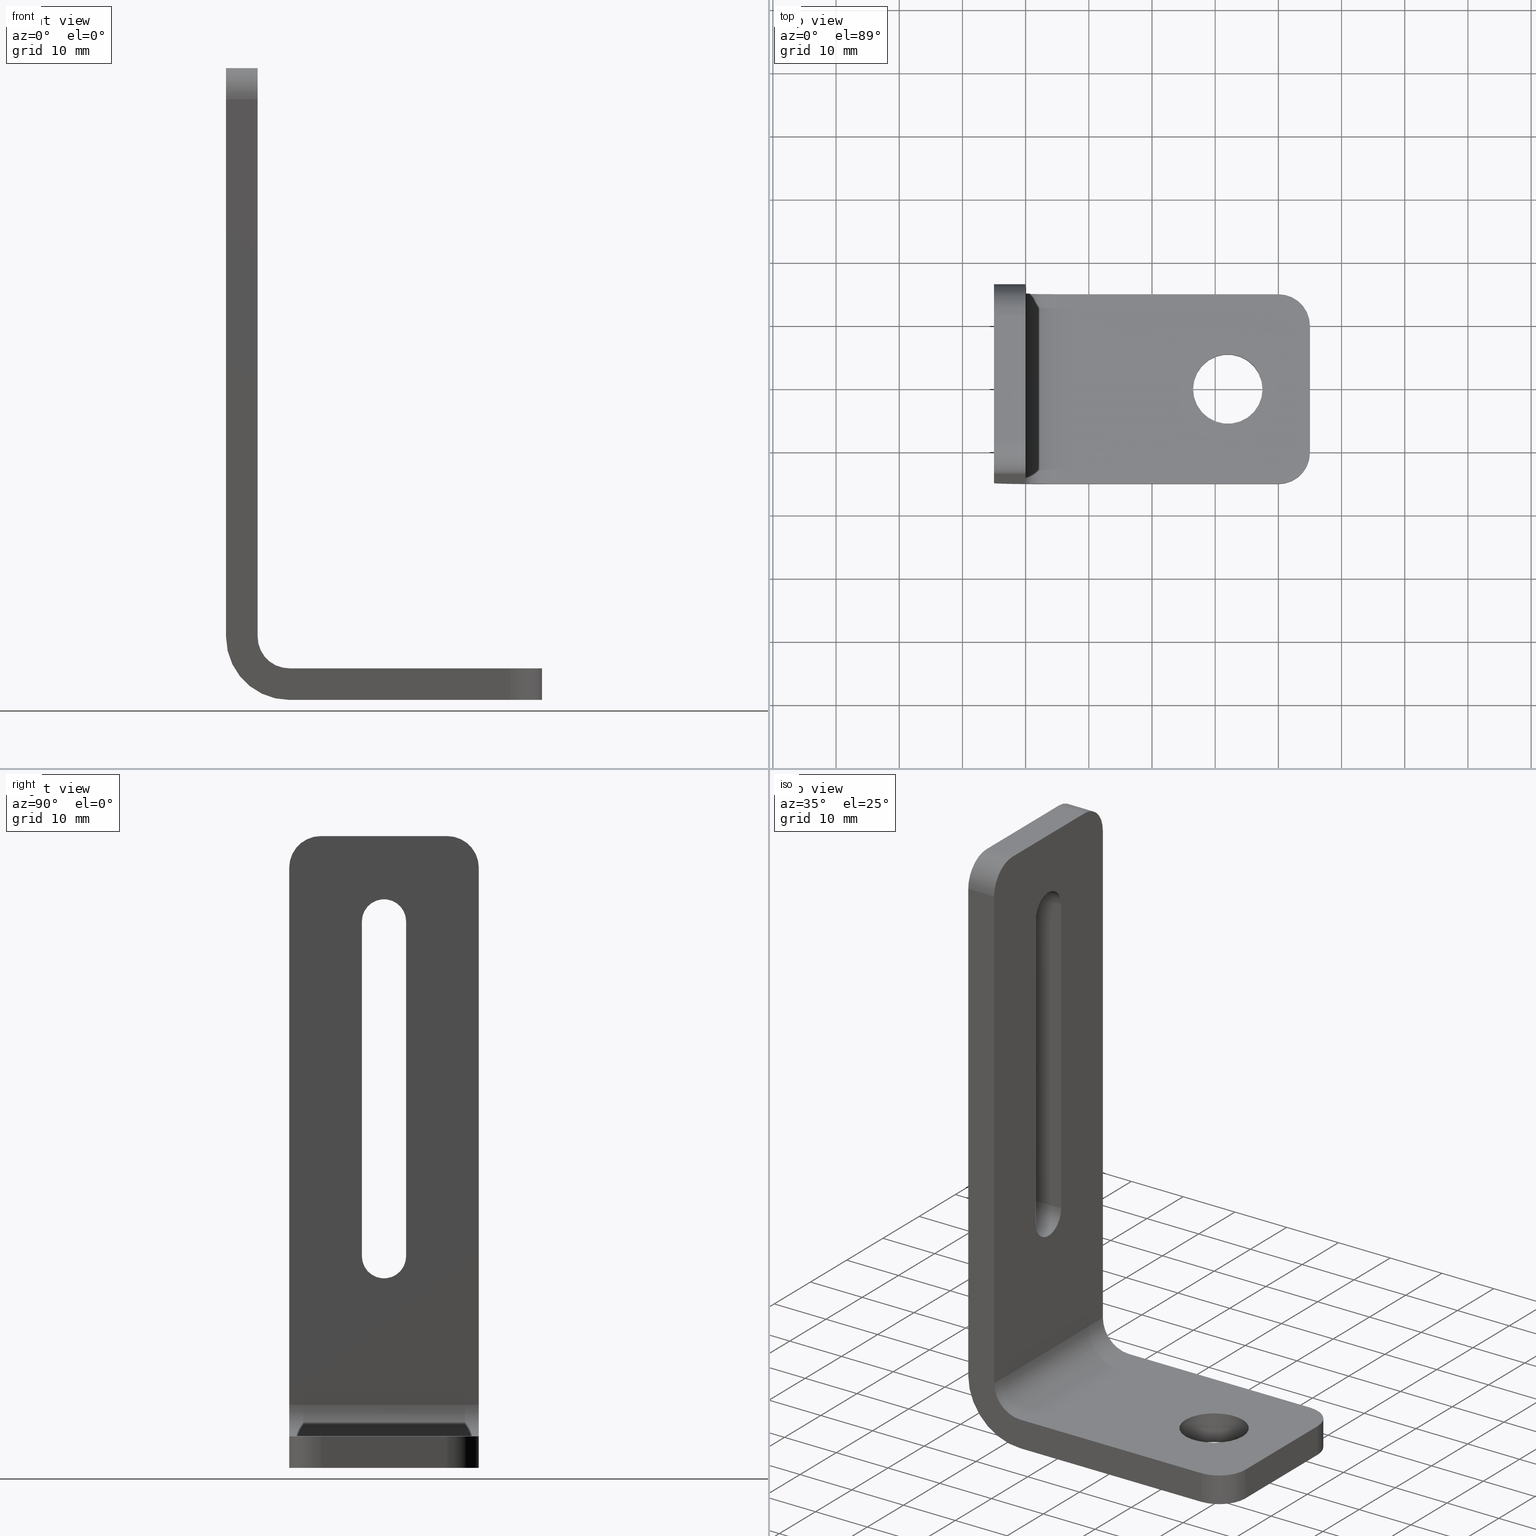
[diagram: canonical four-view strip — front | top / right | iso, engineering-drawing reading convention]
A machine part, canonical four-view strip (front | top / right | iso — engineering-drawing reading convention). The complete STEP part file that produces these views, byte-faithful:
ISO-10303-21;
HEADER;
/* Generated by software containing ST-Developer
 * from STEP Tools, Inc. (www.steptools.com) 
 */

FILE_DESCRIPTION(
/* description */ ('PIEDE 100X50 SP.5 LARG.30 ASOLATO INOX'),
/* implementation_level */ '2;1');

FILE_NAME(
/* name */ 
'Q:\\Catalogo\\2_Accessori Dierre\\Per Download Web e catalogo cartace
o\\CATALOGO PIEDI E SOSTEGNI\\PAGINA 50\\DPDFQ0000069.stp',
/* time_stamp */ '2018-11-06T09:09:17+01:00',
/* author */ ('fzagni'),
/* organization */ (''),
/* preprocessor_version */ 'ST-DEVELOPER v16.1',
/* originating_system */ 'Autodesk Inventor 2016',
/* authorisation */ '');

FILE_SCHEMA (('AUTOMOTIVE_DESIGN { 1 0 10303 214 3 1 1 }'));
ENDSEC;

DATA;
#10=MECHANICAL_DESIGN_GEOMETRIC_PRESENTATION_REPRESENTATION('',(#13),#681);
#11=SHAPE_REPRESENTATION_RELATIONSHIP('SRR','None',#690,#12);
#12=ADVANCED_BREP_SHAPE_REPRESENTATION('',(#14),#680);
#13=STYLED_ITEM('',(#699),#14);
#14=MANIFOLD_SOLID_BREP('Solido1',#403);
#15=FACE_BOUND('',#60,.T.);
#16=FACE_BOUND('',#66,.T.);
#17=FACE_BOUND('',#74,.T.);
#18=FACE_BOUND('',#80,.T.);
#19=FACE_BOUND('',#84,.T.);
#20=PLANE('',#408);
#21=PLANE('',#409);
#22=PLANE('',#414);
#23=PLANE('',#418);
#24=PLANE('',#419);
#25=PLANE('',#425);
#26=PLANE('',#428);
#27=PLANE('',#431);
#28=PLANE('',#437);
#29=PLANE('',#438);
#30=PLANE('',#440);
#31=PLANE('',#442);
#32=PLANE('',#444);
#33=PLANE('',#445);
#34=FACE_OUTER_BOUND('',#57,.T.);
#35=FACE_OUTER_BOUND('',#58,.T.);
#36=FACE_OUTER_BOUND('',#59,.T.);
#37=FACE_OUTER_BOUND('',#61,.T.);
#38=FACE_OUTER_BOUND('',#62,.T.);
#39=FACE_OUTER_BOUND('',#63,.T.);
#40=FACE_OUTER_BOUND('',#64,.T.);
#41=FACE_OUTER_BOUND('',#65,.T.);
#42=FACE_OUTER_BOUND('',#67,.T.);
#43=FACE_OUTER_BOUND('',#68,.T.);
#44=FACE_OUTER_BOUND('',#69,.T.);
#45=FACE_OUTER_BOUND('',#70,.T.);
#46=FACE_OUTER_BOUND('',#71,.T.);
#47=FACE_OUTER_BOUND('',#72,.T.);
#48=FACE_OUTER_BOUND('',#73,.T.);
#49=FACE_OUTER_BOUND('',#75,.T.);
#50=FACE_OUTER_BOUND('',#76,.T.);
#51=FACE_OUTER_BOUND('',#77,.T.);
#52=FACE_OUTER_BOUND('',#78,.T.);
#53=FACE_OUTER_BOUND('',#79,.T.);
#54=FACE_OUTER_BOUND('',#81,.T.);
#55=FACE_OUTER_BOUND('',#82,.T.);
#56=FACE_OUTER_BOUND('',#83,.T.);
#57=EDGE_LOOP('',(#263,#264,#265,#266));
#58=EDGE_LOOP('',(#267,#268,#269,#270));
#59=EDGE_LOOP('',(#271,#272,#273,#274,#275,#276));
#60=EDGE_LOOP('',(#277));
#61=EDGE_LOOP('',(#278,#279,#280,#281));
#62=EDGE_LOOP('',(#282,#283,#284,#285));
#63=EDGE_LOOP('',(#286,#287,#288,#289));
#64=EDGE_LOOP('',(#290,#291,#292,#293));
#65=EDGE_LOOP('',(#294,#295,#296,#297,#298,#299));
#66=EDGE_LOOP('',(#300,#301,#302,#303));
#67=EDGE_LOOP('',(#304,#305,#306,#307));
#68=EDGE_LOOP('',(#308,#309,#310,#311));
#69=EDGE_LOOP('',(#312,#313,#314,#315));
#70=EDGE_LOOP('',(#316,#317,#318,#319));
#71=EDGE_LOOP('',(#320,#321,#322,#323));
#72=EDGE_LOOP('',(#324,#325,#326,#327));
#73=EDGE_LOOP('',(#328));
#74=EDGE_LOOP('',(#329));
#75=EDGE_LOOP('',(#330,#331,#332,#333));
#76=EDGE_LOOP('',(#334,#335,#336,#337));
#77=EDGE_LOOP('',(#338,#339,#340,#341));
#78=EDGE_LOOP('',(#342,#343,#344,#345));
#79=EDGE_LOOP('',(#346,#347,#348,#349,#350,#351));
#80=EDGE_LOOP('',(#352,#353,#354,#355));
#81=EDGE_LOOP('',(#356,#357,#358,#359));
#82=EDGE_LOOP('',(#360,#361,#362,#363));
#83=EDGE_LOOP('',(#364,#365,#366,#367,#368,#369));
#84=EDGE_LOOP('',(#370));
#85=LINE('',#572,#121);
#86=LINE('',#575,#122);
#87=LINE('',#578,#123);
#88=LINE('',#580,#124);
#89=LINE('',#581,#125);
#90=LINE('',#584,#126);
#91=LINE('',#586,#127);
#92=LINE('',#588,#128);
#93=LINE('',#595,#129);
#94=LINE('',#598,#130);
#95=LINE('',#599,#131);
#96=LINE('',#605,#132);
#97=LINE('',#608,#133);
#98=LINE('',#611,#134);
#99=LINE('',#613,#135);
#100=LINE('',#614,#136);
#101=LINE('',#617,#137);
#102=LINE('',#619,#138);
#103=LINE('',#621,#139);
#104=LINE('',#627,#140);
#105=LINE('',#630,#141);
#106=LINE('',#634,#142);
#107=LINE('',#637,#143);
#108=LINE('',#638,#144);
#109=LINE('',#641,#145);
#110=LINE('',#644,#146);
#111=LINE('',#647,#147);
#112=LINE('',#648,#148);
#113=LINE('',#651,#149);
#114=LINE('',#654,#150);
#115=LINE('',#660,#151);
#116=LINE('',#664,#152);
#117=LINE('',#665,#153);
#118=LINE('',#670,#154);
#119=LINE('',#674,#155);
#120=LINE('',#676,#156);
#121=VECTOR('',#452,5.);
#122=VECTOR('',#455,5.);
#123=VECTOR('',#458,20.);
#124=VECTOR('',#459,5.);
#125=VECTOR('',#460,20.);
#126=VECTOR('',#463,35.);
#127=VECTOR('',#464,30.);
#128=VECTOR('',#465,35.);
#129=VECTOR('',#474,5.);
#130=VECTOR('',#477,5.);
#131=VECTOR('',#478,35.);
#132=VECTOR('',#483,5.);
#133=VECTOR('',#486,5.);
#134=VECTOR('',#489,20.);
#135=VECTOR('',#490,5.);
#136=VECTOR('',#491,20.);
#137=VECTOR('',#494,85.);
#138=VECTOR('',#495,30.);
#139=VECTOR('',#496,85.);
#140=VECTOR('',#501,53.);
#141=VECTOR('',#504,53.);
#142=VECTOR('',#509,5.);
#143=VECTOR('',#512,5.);
#144=VECTOR('',#513,85.);
#145=VECTOR('',#516,5.);
#146=VECTOR('',#519,5.);
#147=VECTOR('',#522,5.);
#148=VECTOR('',#523,53.);
#149=VECTOR('',#526,5.);
#150=VECTOR('',#531,53.);
#151=VECTOR('',#538,30.);
#152=VECTOR('',#545,85.);
#153=VECTOR('',#546,5.);
#154=VECTOR('',#553,5.);
#155=VECTOR('',#560,30.);
#156=VECTOR('',#563,35.);
#157=CIRCLE('',#406,5.);
#158=CIRCLE('',#407,5.);
#159=CIRCLE('',#410,5.);
#160=CIRCLE('',#411,5.5);
#161=CIRCLE('',#413,5.);
#162=CIRCLE('',#416,5.);
#163=CIRCLE('',#417,5.);
#164=CIRCLE('',#420,5.);
#165=CIRCLE('',#421,3.5);
#166=CIRCLE('',#422,3.5);
#167=CIRCLE('',#424,5.);
#168=CIRCLE('',#427,3.5);
#169=CIRCLE('',#430,3.5);
#170=CIRCLE('',#433,5.5);
#171=CIRCLE('',#435,10.);
#172=CIRCLE('',#436,10.);
#173=CIRCLE('',#439,5.);
#174=CIRCLE('',#441,5.);
#175=VERTEX_POINT('',#568);
#176=VERTEX_POINT('',#569);
#177=VERTEX_POINT('',#571);
#178=VERTEX_POINT('',#573);
#179=VERTEX_POINT('',#577);
#180=VERTEX_POINT('',#579);
#181=VERTEX_POINT('',#583);
#182=VERTEX_POINT('',#585);
#183=VERTEX_POINT('',#587);
#184=VERTEX_POINT('',#590);
#185=VERTEX_POINT('',#593);
#186=VERTEX_POINT('',#597);
#187=VERTEX_POINT('',#601);
#188=VERTEX_POINT('',#602);
#189=VERTEX_POINT('',#604);
#190=VERTEX_POINT('',#606);
#191=VERTEX_POINT('',#610);
#192=VERTEX_POINT('',#612);
#193=VERTEX_POINT('',#616);
#194=VERTEX_POINT('',#618);
#195=VERTEX_POINT('',#620);
#196=VERTEX_POINT('',#623);
#197=VERTEX_POINT('',#624);
#198=VERTEX_POINT('',#626);
#199=VERTEX_POINT('',#628);
#200=VERTEX_POINT('',#632);
#201=VERTEX_POINT('',#636);
#202=VERTEX_POINT('',#640);
#203=VERTEX_POINT('',#642);
#204=VERTEX_POINT('',#646);
#205=VERTEX_POINT('',#650);
#206=VERTEX_POINT('',#656);
#207=VERTEX_POINT('',#659);
#208=VERTEX_POINT('',#669);
#209=EDGE_CURVE('',#175,#176,#157,.T.);
#210=EDGE_CURVE('',#176,#177,#85,.T.);
#211=EDGE_CURVE('',#177,#178,#158,.T.);
#212=EDGE_CURVE('',#178,#175,#86,.T.);
#213=EDGE_CURVE('',#179,#178,#87,.T.);
#214=EDGE_CURVE('',#180,#179,#88,.T.);
#215=EDGE_CURVE('',#180,#175,#89,.T.);
#216=EDGE_CURVE('',#177,#181,#90,.T.);
#217=EDGE_CURVE('',#181,#182,#91,.T.);
#218=EDGE_CURVE('',#182,#183,#92,.T.);
#219=EDGE_CURVE('',#179,#183,#159,.T.);
#220=EDGE_CURVE('',#184,#184,#160,.T.);
#221=EDGE_CURVE('',#185,#180,#161,.T.);
#222=EDGE_CURVE('',#183,#185,#93,.T.);
#223=EDGE_CURVE('',#182,#186,#94,.T.);
#224=EDGE_CURVE('',#186,#185,#95,.T.);
#225=EDGE_CURVE('',#187,#188,#162,.T.);
#226=EDGE_CURVE('',#188,#189,#96,.T.);
#227=EDGE_CURVE('',#189,#190,#163,.T.);
#228=EDGE_CURVE('',#190,#187,#97,.T.);
#229=EDGE_CURVE('',#191,#190,#98,.T.);
#230=EDGE_CURVE('',#192,#191,#99,.T.);
#231=EDGE_CURVE('',#192,#187,#100,.T.);
#232=EDGE_CURVE('',#189,#193,#101,.T.);
#233=EDGE_CURVE('',#193,#194,#102,.T.);
#234=EDGE_CURVE('',#195,#194,#103,.T.);
#235=EDGE_CURVE('',#191,#195,#164,.T.);
#236=EDGE_CURVE('',#196,#197,#165,.T.);
#237=EDGE_CURVE('',#197,#198,#104,.T.);
#238=EDGE_CURVE('',#198,#199,#166,.T.);
#239=EDGE_CURVE('',#199,#196,#105,.T.);
#240=EDGE_CURVE('',#200,#192,#167,.T.);
#241=EDGE_CURVE('',#195,#200,#106,.T.);
#242=EDGE_CURVE('',#194,#201,#107,.T.);
#243=EDGE_CURVE('',#201,#200,#108,.T.);
#244=EDGE_CURVE('',#196,#202,#109,.T.);
#245=EDGE_CURVE('',#203,#202,#168,.T.);
#246=EDGE_CURVE('',#197,#203,#110,.T.);
#247=EDGE_CURVE('',#199,#204,#111,.T.);
#248=EDGE_CURVE('',#202,#204,#112,.T.);
#249=EDGE_CURVE('',#198,#205,#113,.T.);
#250=EDGE_CURVE('',#204,#205,#169,.T.);
#251=EDGE_CURVE('',#205,#203,#114,.T.);
#252=EDGE_CURVE('',#206,#206,#170,.T.);
#253=EDGE_CURVE('',#201,#207,#115,.T.);
#254=EDGE_CURVE('',#182,#201,#171,.T.);
#255=EDGE_CURVE('',#207,#181,#172,.T.);
#256=EDGE_CURVE('',#188,#207,#116,.T.);
#257=EDGE_CURVE('',#207,#193,#117,.T.);
#258=EDGE_CURVE('',#194,#186,#173,.T.);
#259=EDGE_CURVE('',#208,#181,#118,.T.);
#260=EDGE_CURVE('',#193,#208,#174,.T.);
#261=EDGE_CURVE('',#186,#208,#119,.T.);
#262=EDGE_CURVE('',#176,#208,#120,.T.);
#263=ORIENTED_EDGE('',*,*,#209,.T.);
#264=ORIENTED_EDGE('',*,*,#210,.T.);
#265=ORIENTED_EDGE('',*,*,#211,.T.);
#266=ORIENTED_EDGE('',*,*,#212,.T.);
#267=ORIENTED_EDGE('',*,*,#212,.F.);
#268=ORIENTED_EDGE('',*,*,#213,.F.);
#269=ORIENTED_EDGE('',*,*,#214,.F.);
#270=ORIENTED_EDGE('',*,*,#215,.T.);
#271=ORIENTED_EDGE('',*,*,#211,.F.);
#272=ORIENTED_EDGE('',*,*,#216,.T.);
#273=ORIENTED_EDGE('',*,*,#217,.T.);
#274=ORIENTED_EDGE('',*,*,#218,.T.);
#275=ORIENTED_EDGE('',*,*,#219,.F.);
#276=ORIENTED_EDGE('',*,*,#213,.T.);
#277=ORIENTED_EDGE('',*,*,#220,.T.);
#278=ORIENTED_EDGE('',*,*,#221,.T.);
#279=ORIENTED_EDGE('',*,*,#214,.T.);
#280=ORIENTED_EDGE('',*,*,#219,.T.);
#281=ORIENTED_EDGE('',*,*,#222,.T.);
#282=ORIENTED_EDGE('',*,*,#222,.F.);
#283=ORIENTED_EDGE('',*,*,#218,.F.);
#284=ORIENTED_EDGE('',*,*,#223,.T.);
#285=ORIENTED_EDGE('',*,*,#224,.T.);
#286=ORIENTED_EDGE('',*,*,#225,.T.);
#287=ORIENTED_EDGE('',*,*,#226,.T.);
#288=ORIENTED_EDGE('',*,*,#227,.T.);
#289=ORIENTED_EDGE('',*,*,#228,.T.);
#290=ORIENTED_EDGE('',*,*,#228,.F.);
#291=ORIENTED_EDGE('',*,*,#229,.F.);
#292=ORIENTED_EDGE('',*,*,#230,.F.);
#293=ORIENTED_EDGE('',*,*,#231,.T.);
#294=ORIENTED_EDGE('',*,*,#227,.F.);
#295=ORIENTED_EDGE('',*,*,#232,.T.);
#296=ORIENTED_EDGE('',*,*,#233,.T.);
#297=ORIENTED_EDGE('',*,*,#234,.F.);
#298=ORIENTED_EDGE('',*,*,#235,.F.);
#299=ORIENTED_EDGE('',*,*,#229,.T.);
#300=ORIENTED_EDGE('',*,*,#236,.T.);
#301=ORIENTED_EDGE('',*,*,#237,.T.);
#302=ORIENTED_EDGE('',*,*,#238,.T.);
#303=ORIENTED_EDGE('',*,*,#239,.T.);
#304=ORIENTED_EDGE('',*,*,#240,.T.);
#305=ORIENTED_EDGE('',*,*,#230,.T.);
#306=ORIENTED_EDGE('',*,*,#235,.T.);
#307=ORIENTED_EDGE('',*,*,#241,.T.);
#308=ORIENTED_EDGE('',*,*,#241,.F.);
#309=ORIENTED_EDGE('',*,*,#234,.T.);
#310=ORIENTED_EDGE('',*,*,#242,.T.);
#311=ORIENTED_EDGE('',*,*,#243,.T.);
#312=ORIENTED_EDGE('',*,*,#236,.F.);
#313=ORIENTED_EDGE('',*,*,#244,.T.);
#314=ORIENTED_EDGE('',*,*,#245,.F.);
#315=ORIENTED_EDGE('',*,*,#246,.F.);
#316=ORIENTED_EDGE('',*,*,#239,.F.);
#317=ORIENTED_EDGE('',*,*,#247,.T.);
#318=ORIENTED_EDGE('',*,*,#248,.F.);
#319=ORIENTED_EDGE('',*,*,#244,.F.);
#320=ORIENTED_EDGE('',*,*,#238,.F.);
#321=ORIENTED_EDGE('',*,*,#249,.T.);
#322=ORIENTED_EDGE('',*,*,#250,.F.);
#323=ORIENTED_EDGE('',*,*,#247,.F.);
#324=ORIENTED_EDGE('',*,*,#237,.F.);
#325=ORIENTED_EDGE('',*,*,#246,.T.);
#326=ORIENTED_EDGE('',*,*,#251,.F.);
#327=ORIENTED_EDGE('',*,*,#249,.F.);
#328=ORIENTED_EDGE('',*,*,#220,.F.);
#329=ORIENTED_EDGE('',*,*,#252,.F.);
#330=ORIENTED_EDGE('',*,*,#253,.F.);
#331=ORIENTED_EDGE('',*,*,#254,.F.);
#332=ORIENTED_EDGE('',*,*,#217,.F.);
#333=ORIENTED_EDGE('',*,*,#255,.F.);
#334=ORIENTED_EDGE('',*,*,#226,.F.);
#335=ORIENTED_EDGE('',*,*,#256,.T.);
#336=ORIENTED_EDGE('',*,*,#257,.T.);
#337=ORIENTED_EDGE('',*,*,#232,.F.);
#338=ORIENTED_EDGE('',*,*,#242,.F.);
#339=ORIENTED_EDGE('',*,*,#258,.T.);
#340=ORIENTED_EDGE('',*,*,#223,.F.);
#341=ORIENTED_EDGE('',*,*,#254,.T.);
#342=ORIENTED_EDGE('',*,*,#257,.F.);
#343=ORIENTED_EDGE('',*,*,#255,.T.);
#344=ORIENTED_EDGE('',*,*,#259,.F.);
#345=ORIENTED_EDGE('',*,*,#260,.F.);
#346=ORIENTED_EDGE('',*,*,#225,.F.);
#347=ORIENTED_EDGE('',*,*,#231,.F.);
#348=ORIENTED_EDGE('',*,*,#240,.F.);
#349=ORIENTED_EDGE('',*,*,#243,.F.);
#350=ORIENTED_EDGE('',*,*,#253,.T.);
#351=ORIENTED_EDGE('',*,*,#256,.F.);
#352=ORIENTED_EDGE('',*,*,#245,.T.);
#353=ORIENTED_EDGE('',*,*,#248,.T.);
#354=ORIENTED_EDGE('',*,*,#250,.T.);
#355=ORIENTED_EDGE('',*,*,#251,.T.);
#356=ORIENTED_EDGE('',*,*,#233,.F.);
#357=ORIENTED_EDGE('',*,*,#260,.T.);
#358=ORIENTED_EDGE('',*,*,#261,.F.);
#359=ORIENTED_EDGE('',*,*,#258,.F.);
#360=ORIENTED_EDGE('',*,*,#210,.F.);
#361=ORIENTED_EDGE('',*,*,#262,.T.);
#362=ORIENTED_EDGE('',*,*,#259,.T.);
#363=ORIENTED_EDGE('',*,*,#216,.F.);
#364=ORIENTED_EDGE('',*,*,#209,.F.);
#365=ORIENTED_EDGE('',*,*,#215,.F.);
#366=ORIENTED_EDGE('',*,*,#221,.F.);
#367=ORIENTED_EDGE('',*,*,#224,.F.);
#368=ORIENTED_EDGE('',*,*,#261,.T.);
#369=ORIENTED_EDGE('',*,*,#262,.F.);
#370=ORIENTED_EDGE('',*,*,#252,.T.);
#371=CYLINDRICAL_SURFACE('',#405,5.);
#372=CYLINDRICAL_SURFACE('',#412,5.);
#373=CYLINDRICAL_SURFACE('',#415,5.);
#374=CYLINDRICAL_SURFACE('',#423,5.);
#375=CYLINDRICAL_SURFACE('',#426,3.5);
#376=CYLINDRICAL_SURFACE('',#429,3.5);
#377=CYLINDRICAL_SURFACE('',#432,5.5);
#378=CYLINDRICAL_SURFACE('',#434,10.);
#379=CYLINDRICAL_SURFACE('',#443,5.);
#380=ADVANCED_FACE('',(#34),#371,.T.);
#381=ADVANCED_FACE('',(#35),#20,.T.);
#382=ADVANCED_FACE('',(#36,#15),#21,.F.);
#383=ADVANCED_FACE('',(#37),#372,.T.);
#384=ADVANCED_FACE('',(#38),#22,.T.);
#385=ADVANCED_FACE('',(#39),#373,.T.);
#386=ADVANCED_FACE('',(#40),#23,.T.);
#387=ADVANCED_FACE('',(#41,#16),#24,.T.);
#388=ADVANCED_FACE('',(#42),#374,.T.);
#389=ADVANCED_FACE('',(#43),#25,.T.);
#390=ADVANCED_FACE('',(#44),#375,.F.);
#391=ADVANCED_FACE('',(#45),#26,.F.);
#392=ADVANCED_FACE('',(#46),#376,.F.);
#393=ADVANCED_FACE('',(#47),#27,.F.);
#394=ADVANCED_FACE('',(#48,#17),#377,.F.);
#395=ADVANCED_FACE('',(#49),#378,.T.);
#396=ADVANCED_FACE('',(#50),#28,.T.);
#397=ADVANCED_FACE('',(#51),#29,.T.);
#398=ADVANCED_FACE('',(#52),#30,.T.);
#399=ADVANCED_FACE('',(#53,#18),#31,.F.);
#400=ADVANCED_FACE('',(#54),#379,.F.);
#401=ADVANCED_FACE('',(#55),#32,.T.);
#402=ADVANCED_FACE('',(#56,#19),#33,.T.);
#403=CLOSED_SHELL('',(#380,#381,#382,#383,#384,#385,#386,#387,#388,#389,
#390,#391,#392,#393,#394,#395,#396,#397,#398,#399,#400,#401,#402));
#404=AXIS2_PLACEMENT_3D('placement',#566,#446,#447);
#405=AXIS2_PLACEMENT_3D('',#567,#448,#449);
#406=AXIS2_PLACEMENT_3D('',#570,#450,#451);
#407=AXIS2_PLACEMENT_3D('',#574,#453,#454);
#408=AXIS2_PLACEMENT_3D('',#576,#456,#457);
#409=AXIS2_PLACEMENT_3D('',#582,#461,#462);
#410=AXIS2_PLACEMENT_3D('',#589,#466,#467);
#411=AXIS2_PLACEMENT_3D('',#591,#468,#469);
#412=AXIS2_PLACEMENT_3D('',#592,#470,#471);
#413=AXIS2_PLACEMENT_3D('',#594,#472,#473);
#414=AXIS2_PLACEMENT_3D('',#596,#475,#476);
#415=AXIS2_PLACEMENT_3D('',#600,#479,#480);
#416=AXIS2_PLACEMENT_3D('',#603,#481,#482);
#417=AXIS2_PLACEMENT_3D('',#607,#484,#485);
#418=AXIS2_PLACEMENT_3D('',#609,#487,#488);
#419=AXIS2_PLACEMENT_3D('',#615,#492,#493);
#420=AXIS2_PLACEMENT_3D('',#622,#497,#498);
#421=AXIS2_PLACEMENT_3D('',#625,#499,#500);
#422=AXIS2_PLACEMENT_3D('',#629,#502,#503);
#423=AXIS2_PLACEMENT_3D('',#631,#505,#506);
#424=AXIS2_PLACEMENT_3D('',#633,#507,#508);
#425=AXIS2_PLACEMENT_3D('',#635,#510,#511);
#426=AXIS2_PLACEMENT_3D('',#639,#514,#515);
#427=AXIS2_PLACEMENT_3D('',#643,#517,#518);
#428=AXIS2_PLACEMENT_3D('',#645,#520,#521);
#429=AXIS2_PLACEMENT_3D('',#649,#524,#525);
#430=AXIS2_PLACEMENT_3D('',#652,#527,#528);
#431=AXIS2_PLACEMENT_3D('',#653,#529,#530);
#432=AXIS2_PLACEMENT_3D('',#655,#532,#533);
#433=AXIS2_PLACEMENT_3D('',#657,#534,#535);
#434=AXIS2_PLACEMENT_3D('',#658,#536,#537);
#435=AXIS2_PLACEMENT_3D('',#661,#539,#540);
#436=AXIS2_PLACEMENT_3D('',#662,#541,#542);
#437=AXIS2_PLACEMENT_3D('',#663,#543,#544);
#438=AXIS2_PLACEMENT_3D('',#666,#547,#548);
#439=AXIS2_PLACEMENT_3D('',#667,#549,#550);
#440=AXIS2_PLACEMENT_3D('',#668,#551,#552);
#441=AXIS2_PLACEMENT_3D('',#671,#554,#555);
#442=AXIS2_PLACEMENT_3D('',#672,#556,#557);
#443=AXIS2_PLACEMENT_3D('',#673,#558,#559);
#444=AXIS2_PLACEMENT_3D('',#675,#561,#562);
#445=AXIS2_PLACEMENT_3D('',#677,#564,#565);
#446=DIRECTION('axis',(0.,0.,1.));
#447=DIRECTION('refdir',(1.,0.,0.));
#448=DIRECTION('center_axis',(0.,0.,1.));
#449=DIRECTION('ref_axis',(0.707106781186547,-0.707106781186547,0.));
#450=DIRECTION('center_axis',(0.,0.,-1.));
#451=DIRECTION('ref_axis',(0.707106781186547,-0.707106781186547,0.));
#452=DIRECTION('',(0.,0.,-1.));
#453=DIRECTION('center_axis',(0.,0.,1.));
#454=DIRECTION('ref_axis',(0.707106781186547,-0.707106781186547,0.));
#455=DIRECTION('',(0.,0.,1.));
#456=DIRECTION('center_axis',(1.,0.,0.));
#457=DIRECTION('ref_axis',(0.,0.,-1.));
#458=DIRECTION('',(0.,-1.,0.));
#459=DIRECTION('',(0.,0.,-1.));
#460=DIRECTION('',(0.,-1.,0.));
#461=DIRECTION('center_axis',(0.,0.,1.));
#462=DIRECTION('ref_axis',(1.,0.,0.));
#463=DIRECTION('',(-1.,0.,0.));
#464=DIRECTION('',(0.,1.,0.));
#465=DIRECTION('',(1.,0.,0.));
#466=DIRECTION('center_axis',(0.,0.,1.));
#467=DIRECTION('ref_axis',(0.707106781186547,0.707106781186547,0.));
#468=DIRECTION('center_axis',(0.,0.,1.));
#469=DIRECTION('ref_axis',(1.,0.,0.));
#470=DIRECTION('center_axis',(0.,0.,1.));
#471=DIRECTION('ref_axis',(0.707106781186547,0.707106781186547,0.));
#472=DIRECTION('center_axis',(0.,0.,-1.));
#473=DIRECTION('ref_axis',(0.707106781186547,0.707106781186547,0.));
#474=DIRECTION('',(0.,0.,1.));
#475=DIRECTION('center_axis',(0.,1.,0.));
#476=DIRECTION('ref_axis',(0.,0.,1.));
#477=DIRECTION('',(0.,0.,1.));
#478=DIRECTION('',(1.,0.,0.));
#479=DIRECTION('center_axis',(-1.,0.,-6.12323399573677E-17));
#480=DIRECTION('ref_axis',(0.,-0.707106781186547,0.707106781186547));
#481=DIRECTION('center_axis',(1.,7.90757140046408E-19,6.10148443209598E-17));
#482=DIRECTION('ref_axis',(0.,-0.707106781186547,0.707106781186547));
#483=DIRECTION('',(1.,0.,6.12323399573677E-17));
#484=DIRECTION('center_axis',(-1.,7.90757140046408E-19,-6.10148443209598E-17));
#485=DIRECTION('ref_axis',(0.,-0.707106781186547,0.707106781186547));
#486=DIRECTION('',(-1.,0.,-6.12323399573677E-17));
#487=DIRECTION('center_axis',(-6.12323399573677E-17,0.,1.));
#488=DIRECTION('ref_axis',(1.,0.,0.));
#489=DIRECTION('',(0.,-1.,0.));
#490=DIRECTION('',(1.,0.,6.12323399573677E-17));
#491=DIRECTION('',(0.,-1.,0.));
#492=DIRECTION('center_axis',(1.,-7.90757140046408E-19,6.10148443209598E-17));
#493=DIRECTION('ref_axis',(0.,0.,-1.));
#494=DIRECTION('',(0.,0.,-1.));
#495=DIRECTION('',(7.90757140046408E-19,1.,4.84199100230374E-35));
#496=DIRECTION('',(0.,0.,-1.));
#497=DIRECTION('center_axis',(-1.,7.90757140046408E-19,-6.10148443209598E-17));
#498=DIRECTION('ref_axis',(0.,0.707106781186547,0.707106781186547));
#499=DIRECTION('center_axis',(-1.,7.90757140046408E-19,-6.10148443209598E-17));
#500=DIRECTION('ref_axis',(0.,-1.,-4.82479237956189E-35));
#501=DIRECTION('',(-6.10148443209598E-17,-8.3790416952842E-17,1.));
#502=DIRECTION('center_axis',(-1.,7.90757140046408E-19,-6.10148443209598E-17));
#503=DIRECTION('ref_axis',(0.,1.,4.82479237956189E-35));
#504=DIRECTION('',(6.10148443209598E-17,0.,-1.));
#505=DIRECTION('center_axis',(-1.,0.,-6.12323399573677E-17));
#506=DIRECTION('ref_axis',(0.,0.707106781186547,0.707106781186547));
#507=DIRECTION('center_axis',(1.,7.90757140046408E-19,6.10148443209598E-17));
#508=DIRECTION('ref_axis',(0.,0.707106781186547,0.707106781186547));
#509=DIRECTION('',(-1.,0.,-6.12323399573677E-17));
#510=DIRECTION('center_axis',(0.,1.,0.));
#511=DIRECTION('ref_axis',(1.,0.,0.));
#512=DIRECTION('',(-1.,0.,-6.12323399573677E-17));
#513=DIRECTION('',(-6.12323399573677E-17,0.,1.));
#514=DIRECTION('center_axis',(-1.,0.,0.));
#515=DIRECTION('ref_axis',(0.,-1.,-4.82479237956189E-35));
#516=DIRECTION('',(-1.,0.,0.));
#517=DIRECTION('center_axis',(1.,7.90757140046408E-19,6.10148443209598E-17));
#518=DIRECTION('ref_axis',(0.,-1.,-4.82479237956189E-35));
#519=DIRECTION('',(-1.,0.,0.));
#520=DIRECTION('center_axis',(0.,1.,0.));
#521=DIRECTION('ref_axis',(0.,0.,-1.));
#522=DIRECTION('',(-1.,0.,0.));
#523=DIRECTION('',(-6.10148443209598E-17,0.,1.));
#524=DIRECTION('center_axis',(-1.,0.,0.));
#525=DIRECTION('ref_axis',(0.,1.,4.82479237956189E-35));
#526=DIRECTION('',(-1.,0.,0.));
#527=DIRECTION('center_axis',(1.,7.90757140046408E-19,6.10148443209598E-17));
#528=DIRECTION('ref_axis',(0.,1.,4.82479237956189E-35));
#529=DIRECTION('center_axis',(0.,-1.,-8.3790416952842E-17));
#530=DIRECTION('ref_axis',(0.,-8.88178419700125E-17,1.));
#531=DIRECTION('',(6.10148443209598E-17,8.3790416952842E-17,-1.));
#532=DIRECTION('center_axis',(0.,0.,1.));
#533=DIRECTION('ref_axis',(1.,0.,0.));
#534=DIRECTION('center_axis',(0.,0.,-1.));
#535=DIRECTION('ref_axis',(1.,0.,0.));
#536=DIRECTION('center_axis',(0.,1.,0.));
#537=DIRECTION('ref_axis',(0.,0.,-1.));
#538=DIRECTION('',(7.90757140046408E-19,-1.,4.84199100230374E-35));
#539=DIRECTION('center_axis',(0.,1.,0.));
#540=DIRECTION('ref_axis',(0.,0.,-1.));
#541=DIRECTION('center_axis',(0.,-1.,0.));
#542=DIRECTION('ref_axis',(-1.,0.,-1.11022302462516E-16));
#543=DIRECTION('center_axis',(0.,-1.,0.));
#544=DIRECTION('ref_axis',(-1.,0.,0.));
#545=DIRECTION('',(0.,0.,-1.));
#546=DIRECTION('',(1.,0.,6.12323399573677E-17));
#547=DIRECTION('center_axis',(0.,1.,0.));
#548=DIRECTION('ref_axis',(0.,0.,1.));
#549=DIRECTION('center_axis',(0.,-1.,0.));
#550=DIRECTION('ref_axis',(-1.,0.,0.));
#551=DIRECTION('center_axis',(0.,-1.,0.));
#552=DIRECTION('ref_axis',(0.,0.,-1.));
#553=DIRECTION('',(0.,0.,-1.));
#554=DIRECTION('center_axis',(0.,-1.,0.));
#555=DIRECTION('ref_axis',(-1.,0.,0.));
#556=DIRECTION('center_axis',(1.,7.90757140046408E-19,6.10148443209598E-17));
#557=DIRECTION('ref_axis',(0.,0.,-1.));
#558=DIRECTION('center_axis',(0.,1.,0.));
#559=DIRECTION('ref_axis',(0.,0.,-1.));
#560=DIRECTION('',(0.,-1.,0.));
#561=DIRECTION('center_axis',(0.,-1.,0.));
#562=DIRECTION('ref_axis',(0.,0.,-1.));
#563=DIRECTION('',(-1.,0.,0.));
#564=DIRECTION('center_axis',(0.,0.,1.));
#565=DIRECTION('ref_axis',(1.,0.,0.));
#566=CARTESIAN_POINT('',(0.,0.,0.));
#567=CARTESIAN_POINT('Origin',(20.,-10.,0.));
#568=CARTESIAN_POINT('',(25.,-10.,5.));
#569=CARTESIAN_POINT('',(20.,-15.,5.));
#570=CARTESIAN_POINT('Origin',(20.,-10.,5.));
#571=CARTESIAN_POINT('',(20.,-15.,0.));
#572=CARTESIAN_POINT('',(20.,-15.,0.));
#573=CARTESIAN_POINT('',(25.,-10.,0.));
#574=CARTESIAN_POINT('Origin',(20.,-10.,0.));
#575=CARTESIAN_POINT('',(25.,-10.,0.));
#576=CARTESIAN_POINT('Origin',(25.,15.,0.));
#577=CARTESIAN_POINT('',(25.,10.,0.));
#578=CARTESIAN_POINT('',(25.,15.,0.));
#579=CARTESIAN_POINT('',(25.,10.,5.));
#580=CARTESIAN_POINT('',(25.,10.,0.));
#581=CARTESIAN_POINT('',(25.,15.,5.));
#582=CARTESIAN_POINT('Origin',(0.,7.56970244062607E-17,0.));
#583=CARTESIAN_POINT('',(-15.,-15.,0.));
#584=CARTESIAN_POINT('',(25.,-15.,0.));
#585=CARTESIAN_POINT('',(-15.,15.,0.));
#586=CARTESIAN_POINT('',(-15.,-7.5,0.));
#587=CARTESIAN_POINT('',(20.,15.,0.));
#588=CARTESIAN_POINT('',(-25.,15.,0.));
#589=CARTESIAN_POINT('Origin',(20.,10.,0.));
#590=CARTESIAN_POINT('',(6.5,-6.73555739531044E-16,0.));
#591=CARTESIAN_POINT('Origin',(12.,0.,0.));
#592=CARTESIAN_POINT('Origin',(20.,10.,0.));
#593=CARTESIAN_POINT('',(20.,15.,5.));
#594=CARTESIAN_POINT('Origin',(20.,10.,5.));
#595=CARTESIAN_POINT('',(20.,15.,0.));
#596=CARTESIAN_POINT('Origin',(-25.,15.,0.));
#597=CARTESIAN_POINT('',(-15.,15.,5.));
#598=CARTESIAN_POINT('',(-15.,15.,2.5));
#599=CARTESIAN_POINT('',(-25.,15.,5.));
#600=CARTESIAN_POINT('Origin',(-20.,-10.,95.));
#601=CARTESIAN_POINT('',(-25.,-10.,100.));
#602=CARTESIAN_POINT('',(-25.,-15.,95.));
#603=CARTESIAN_POINT('Origin',(-25.,-10.,95.));
#604=CARTESIAN_POINT('',(-20.,-15.,95.));
#605=CARTESIAN_POINT('',(-20.,-15.,95.));
#606=CARTESIAN_POINT('',(-20.,-10.,100.));
#607=CARTESIAN_POINT('Origin',(-20.,-10.,95.));
#608=CARTESIAN_POINT('',(-20.,-10.,100.));
#609=CARTESIAN_POINT('Origin',(-20.,15.,100.));
#610=CARTESIAN_POINT('',(-20.,10.,100.));
#611=CARTESIAN_POINT('',(-20.,15.,100.));
#612=CARTESIAN_POINT('',(-25.,10.,100.));
#613=CARTESIAN_POINT('',(-20.,10.,100.));
#614=CARTESIAN_POINT('',(-25.,15.,100.));
#615=CARTESIAN_POINT('Origin',(-20.,0.,48.75));
#616=CARTESIAN_POINT('',(-20.,-15.,10.));
#617=CARTESIAN_POINT('',(-20.,-15.,-15.));
#618=CARTESIAN_POINT('',(-20.,15.,10.));
#619=CARTESIAN_POINT('',(-20.,-1.16942984047388E-18,10.));
#620=CARTESIAN_POINT('',(-20.,15.,95.));
#621=CARTESIAN_POINT('',(-20.,15.,-15.));
#622=CARTESIAN_POINT('Origin',(-20.,10.,95.));
#623=CARTESIAN_POINT('',(-20.,3.5,33.5));
#624=CARTESIAN_POINT('',(-20.,-3.5,33.5));
#625=CARTESIAN_POINT('Origin',(-20.,0.,33.5));
#626=CARTESIAN_POINT('',(-20.,-3.5,86.5));
#627=CARTESIAN_POINT('',(-20.,-3.5,41.125));
#628=CARTESIAN_POINT('',(-20.,3.5,86.5));
#629=CARTESIAN_POINT('Origin',(-20.,0.,86.5));
#630=CARTESIAN_POINT('',(-20.,3.5,67.625));
#631=CARTESIAN_POINT('Origin',(-20.,10.,95.));
#632=CARTESIAN_POINT('',(-25.,15.,95.));
#633=CARTESIAN_POINT('Origin',(-25.,10.,95.));
#634=CARTESIAN_POINT('',(-20.,15.,95.));
#635=CARTESIAN_POINT('Origin',(-20.,15.,10.));
#636=CARTESIAN_POINT('',(-25.,15.,10.));
#637=CARTESIAN_POINT('',(-21.4788735772974,15.,10.));
#638=CARTESIAN_POINT('',(-25.,15.,10.));
#639=CARTESIAN_POINT('Origin',(-20.,0.,33.5));
#640=CARTESIAN_POINT('',(-25.,3.5,33.5));
#641=CARTESIAN_POINT('',(-20.,3.5,33.5));
#642=CARTESIAN_POINT('',(-25.,-3.5,33.5));
#643=CARTESIAN_POINT('Origin',(-25.,0.,33.5));
#644=CARTESIAN_POINT('',(-20.,-3.5,33.5));
#645=CARTESIAN_POINT('Origin',(-20.,3.5,86.5));
#646=CARTESIAN_POINT('',(-25.,3.5,86.5));
#647=CARTESIAN_POINT('',(-20.,3.5,86.5));
#648=CARTESIAN_POINT('',(-25.,3.5,67.625));
#649=CARTESIAN_POINT('Origin',(-20.,0.,86.5));
#650=CARTESIAN_POINT('',(-25.,-3.5,86.5));
#651=CARTESIAN_POINT('',(-20.,-3.5,86.5));
#652=CARTESIAN_POINT('Origin',(-25.,0.,86.5));
#653=CARTESIAN_POINT('Origin',(-20.,-3.5,33.5));
#654=CARTESIAN_POINT('',(-25.,-3.5,41.125));
#655=CARTESIAN_POINT('Origin',(12.,0.,-110.758369027902));
#656=CARTESIAN_POINT('',(17.5,0.,5.));
#657=CARTESIAN_POINT('Origin',(12.,0.,5.));
#658=CARTESIAN_POINT('Origin',(-15.,0.,10.));
#659=CARTESIAN_POINT('',(-25.,-15.,10.));
#660=CARTESIAN_POINT('',(-25.,-8.0746300964214E-19,10.));
#661=CARTESIAN_POINT('Origin',(-15.,15.,10.));
#662=CARTESIAN_POINT('Origin',(-15.,-15.,10.));
#663=CARTESIAN_POINT('Origin',(-20.,-15.,10.));
#664=CARTESIAN_POINT('',(-25.,-15.,-15.));
#665=CARTESIAN_POINT('',(-21.4788735772974,-15.,10.));
#666=CARTESIAN_POINT('Origin',(-20.,15.,10.));
#667=CARTESIAN_POINT('Origin',(-15.,15.,10.));
#668=CARTESIAN_POINT('Origin',(-25.,-15.,10.));
#669=CARTESIAN_POINT('',(-15.,-15.,5.));
#670=CARTESIAN_POINT('',(-15.,-15.,2.5));
#671=CARTESIAN_POINT('Origin',(-15.,-15.,10.));
#672=CARTESIAN_POINT('Origin',(-25.,0.,48.75));
#673=CARTESIAN_POINT('Origin',(-15.,0.,10.));
#674=CARTESIAN_POINT('',(-15.,-7.5,5.));
#675=CARTESIAN_POINT('Origin',(25.,-15.,0.));
#676=CARTESIAN_POINT('',(25.,-15.,5.));
#677=CARTESIAN_POINT('Origin',(0.,-7.56970244062607E-17,5.));
#678=UNCERTAINTY_MEASURE_WITH_UNIT(LENGTH_MEASURE(0.01),#682,
'DISTANCE_ACCURACY_VALUE',
'Maximum model space distance between geometric entities at asserted c
onnectivities');
#679=UNCERTAINTY_MEASURE_WITH_UNIT(LENGTH_MEASURE(1.E-6),#682,
'DISTANCE_ACCURACY_VALUE',
'Maximum model space distance between geometric entities at asserted c
onnectivities');
#680=(
GEOMETRIC_REPRESENTATION_CONTEXT(3)
GLOBAL_UNCERTAINTY_ASSIGNED_CONTEXT((#678))
GLOBAL_UNIT_ASSIGNED_CONTEXT((#682,#685,#683))
REPRESENTATION_CONTEXT('','3D')
);
#681=(
GEOMETRIC_REPRESENTATION_CONTEXT(3)
GLOBAL_UNCERTAINTY_ASSIGNED_CONTEXT((#679))
GLOBAL_UNIT_ASSIGNED_CONTEXT((#682,#685,#683))
REPRESENTATION_CONTEXT('','3D')
);
#682=(
LENGTH_UNIT()
NAMED_UNIT(*)
SI_UNIT(.MILLI.,.METRE.)
);
#683=(
NAMED_UNIT(*)
SI_UNIT($,.STERADIAN.)
SOLID_ANGLE_UNIT()
);
#684=DIMENSIONAL_EXPONENTS(0.,0.,0.,0.,0.,0.,0.);
#685=(
CONVERSION_BASED_UNIT('degree',#687)
NAMED_UNIT(#684)
PLANE_ANGLE_UNIT()
);
#686=(
NAMED_UNIT(*)
PLANE_ANGLE_UNIT()
SI_UNIT($,.RADIAN.)
);
#687=PLANE_ANGLE_MEASURE_WITH_UNIT(PLANE_ANGLE_MEASURE(0.01745329252),#686);
#688=SHAPE_DEFINITION_REPRESENTATION(#689,#690);
#689=PRODUCT_DEFINITION_SHAPE('',$,#692);
#690=SHAPE_REPRESENTATION('',(#404),#680);
#691=PRODUCT_DEFINITION_CONTEXT('part definition',#696,'design');
#692=PRODUCT_DEFINITION('17.004.02','17.004.02',#693,#691);
#693=PRODUCT_DEFINITION_FORMATION('','A',#698);
#694=PRODUCT_RELATED_PRODUCT_CATEGORY('17.004.02','17.004.02',(#698));
#695=APPLICATION_PROTOCOL_DEFINITION('international standard',
'automotive_design',2009,#696);
#696=APPLICATION_CONTEXT(
'Core Data for Automotive Mechanical Design Process');
#697=PRODUCT_CONTEXT('part definition',#696,'mechanical');
#698=PRODUCT('17.004.02','17.004.02',$,(#697));
#699=PRESENTATION_STYLE_ASSIGNMENT((#700));
#700=SURFACE_STYLE_USAGE(.BOTH.,#701);
#701=SURFACE_SIDE_STYLE('',(#702));
#702=SURFACE_STYLE_FILL_AREA(#703);
#703=FILL_AREA_STYLE('',(#704));
#704=FILL_AREA_STYLE_COLOUR('',#705);
#705=COLOUR_RGB('',0.83921568627451,0.886274509803922,0.854901960784314);
ENDSEC;
END-ISO-10303-21;
